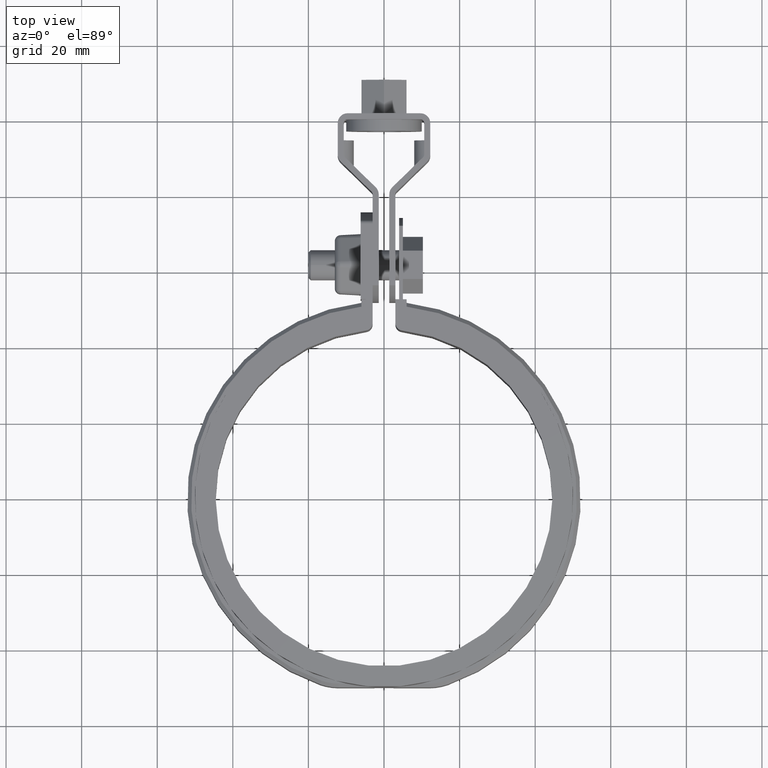
[diagram: clean part render]
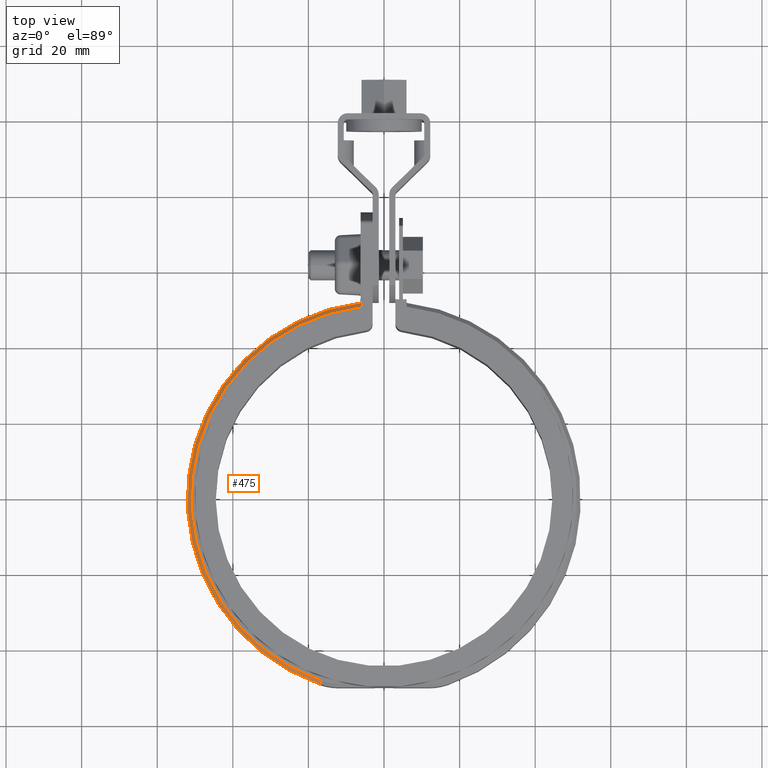
[diagram: same view with one face highlighted and labeled with its STEP entity id]
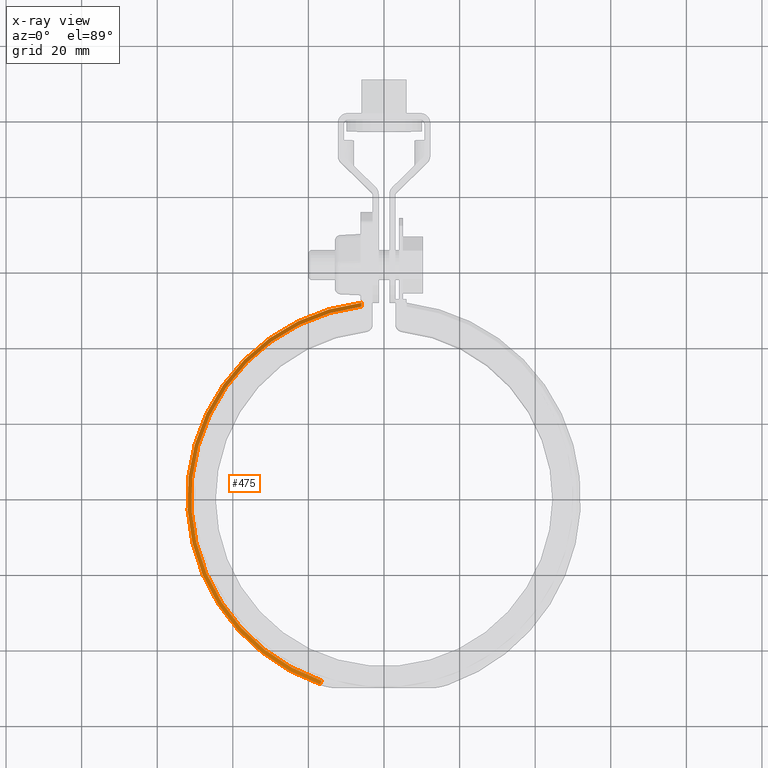
[diagram: x-ray of the same camera — body ghosted, the highlighted face saturated]
A machine part, top view. The second image highlights one B-rep face of the part: STEP entity #475.
The next image is the same camera in x-ray: the body ghosted, the highlighted face saturated — about 0% of this face is hidden behind the body in this view.
In plain terms, the highlighted conical surface has half-angle 45 deg.
Its self-contained STEP definition (entity closure, byte-faithful):
#475 = ADVANCED_FACE( '', ( #929 ), #930, .T. );
#929 = FACE_OUTER_BOUND( '', #2200, .T. );
#930 = CONICAL_SURFACE( '', #2201, 51.0500000000000, 0.785398163397452 );
#2200 = EDGE_LOOP( '', ( #4346, #4347, #4348, #4349 ) );
#2201 = AXIS2_PLACEMENT_3D( '', #4350, #4351, #4352 );
#4346 = ORIENTED_EDGE( '', *, *, #6451, .F. );
#4347 = ORIENTED_EDGE( '', *, *, #6472, .F. );
#4348 = ORIENTED_EDGE( '', *, *, #6492, .F. );
#4349 = ORIENTED_EDGE( '', *, *, #6470, .F. );
#4350 = CARTESIAN_POINT( '', ( 0.000000000000000, -1.38777878078145E-014, 8.50000000000000 ) );
#4351 = DIRECTION( '', ( 0.000000000000000, 0.000000000000000, -1.00000000000000 ) );
#4352 = DIRECTION( '', ( -1.00000000000000, 0.000000000000000, 0.000000000000000 ) );
#6451 = EDGE_CURVE( '', #7577, #7579, #7580, .T. );
#6470 = EDGE_CURVE( '', #7579, #7599, #7603, .T. );
#6472 = EDGE_CURVE( '', #7605, #7577, #7607, .F. );
#6492 = EDGE_CURVE( '', #7599, #7605, #7633, .T. );
#7577 = VERTEX_POINT( '', #10938 );
#7579 = VERTEX_POINT( '', #10941 );
#7580 = B_SPLINE_CURVE_WITH_KNOTS( '', 3, ( #10942, #10943, #10944, #10945 ), .UNSPECIFIED., .F., .F., ( 4, 4 ), ( 7.75791922889773E-018, 0.00141906111018387 ), .UNSPECIFIED. );
#7599 = VERTEX_POINT( '', #10977 );
#7603 = CIRCLE( '', #10982, 51.0500000000000 );
#7605 = VERTEX_POINT( '', #10984 );
#7607 = CIRCLE( '', #10987, 52.0500000000000 );
#7633 = LINE( '', #11027, #11028 );
#10938 = CARTESIAN_POINT( '', ( -6.00000000000000, 51.7030221553828, 7.50000000000001 ) );
#10941 = CARTESIAN_POINT( '', ( -6.00000000000000, 50.6961783569531, 8.50000000000000 ) );
#10942 = CARTESIAN_POINT( '', ( -6.00000000000000, 51.7030221553827, 7.50000000000000 ) );
#10943 = CARTESIAN_POINT( '', ( -6.00000000000000, 51.3674295438524, 7.83335547030037 ) );
#10944 = CARTESIAN_POINT( '', ( -6.00000000000000, 51.0318153765527, 8.16668924174696 ) );
#10945 = CARTESIAN_POINT( '', ( -6.00000000000000, 50.6961783569531, 8.50000000000000 ) );
#10977 = CARTESIAN_POINT( '', ( -16.5458912025651, -48.2942645074224, 8.50000000000000 ) );
#10982 = AXIS2_PLACEMENT_3D( '', #12898, #12899, #12900 );
#10984 = CARTESIAN_POINT( '', ( -16.8700026854753, -49.2402834008097, 7.50000000000001 ) );
#10987 = AXIS2_PLACEMENT_3D( '', #12902, #12903, #12904 );
#11027 = CARTESIAN_POINT( '', ( -16.5458912025651, -48.2942645074224, 8.50000000000000 ) );
#11028 = VECTOR( '', #12937, 1000.00000000000 );
#12898 = CARTESIAN_POINT( '', ( 0.000000000000000, -1.38777878078145E-014, 8.50000000000000 ) );
#12899 = DIRECTION( '', ( 0.000000000000000, 0.000000000000000, 1.00000000000000 ) );
#12900 = DIRECTION( '', ( 1.00000000000000, 0.000000000000000, 0.000000000000000 ) );
#12902 = CARTESIAN_POINT( '', ( 0.000000000000000, -1.38777878078145E-014, 7.50000000000000 ) );
#12903 = DIRECTION( '', ( 0.000000000000000, 0.000000000000000, 1.00000000000000 ) );
#12904 = DIRECTION( '', ( 1.00000000000000, 0.000000000000000, 0.000000000000000 ) );
#12937 = DIRECTION( '', ( -0.229181427426222, -0.668936374644766, -0.707106781186545 ) );